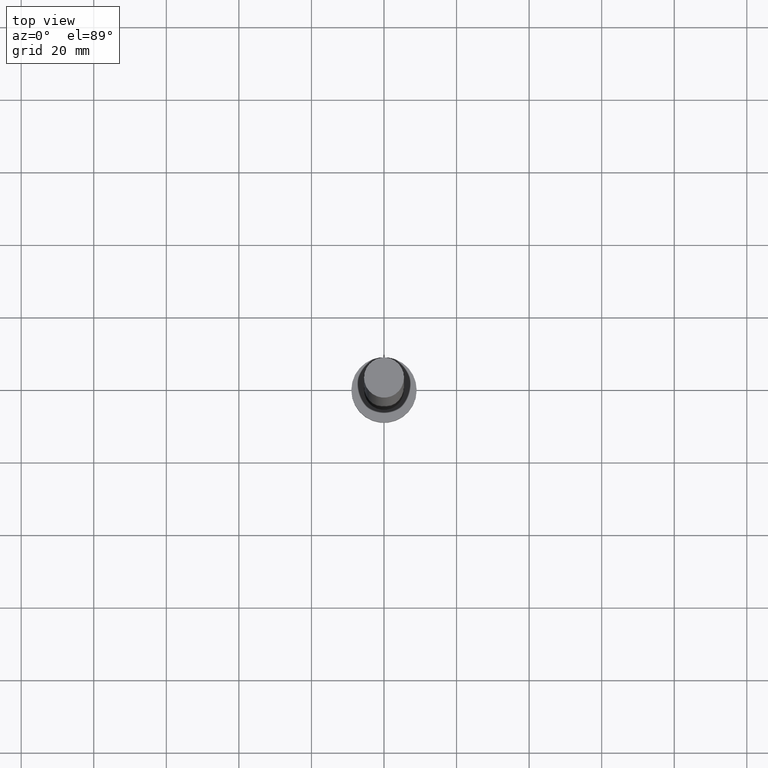
[diagram: clean part render]
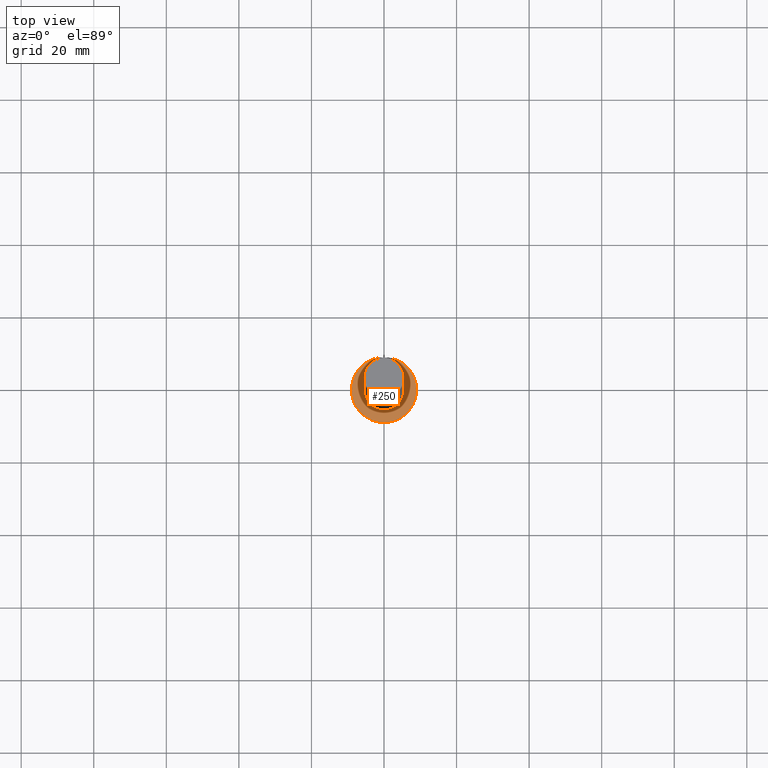
[diagram: same view with one face highlighted and labeled with its STEP entity id]
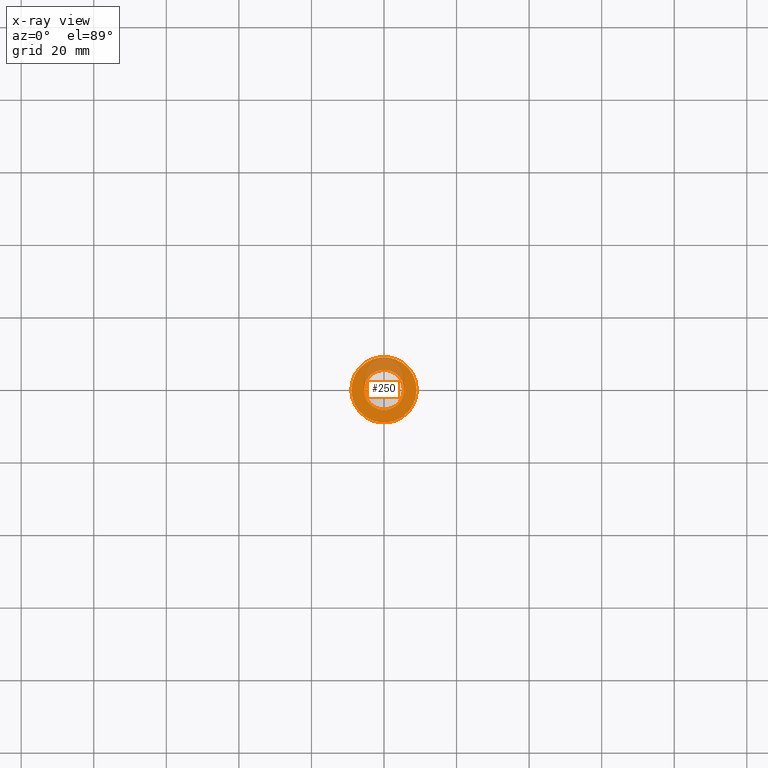
[diagram: x-ray of the same camera — body ghosted, the highlighted face saturated]
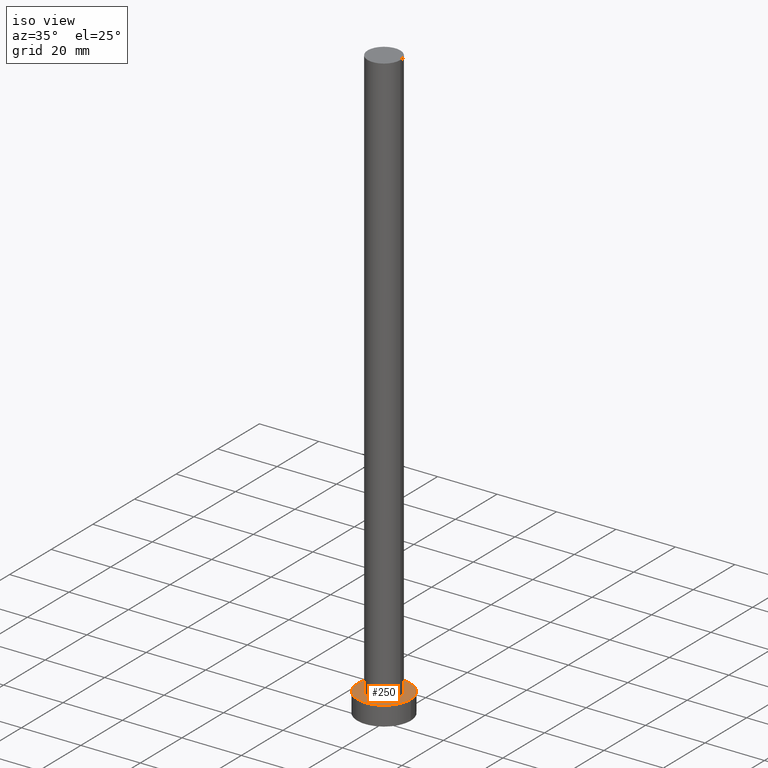
[diagram: same view with one face highlighted and labeled with its STEP entity id]
A machine part, top view. The second image highlights one B-rep face of the part: STEP entity #250.
The next image is the same camera in x-ray: the body ghosted, the highlighted face saturated — about 24% of this face is hidden behind the body in this view.
A second angle (iso view) of the same face is appended — the face is thin or edge-on in the first view.
In plain terms, the highlighted planar face has unit normal (0, 0, 1).
Its self-contained STEP definition (entity closure, byte-faithful):
#1 = DIRECTION ( 'NONE',  ( 0.000000000000000000, 0.000000000000000000, 1.000000000000000000 ) ) ;
#9 = ORIENTED_EDGE ( 'NONE', *, *, #218, .F. ) ;
#32 = EDGE_CURVE ( 'NONE', #93, #206, #106, .T. ) ;
#41 = CIRCLE ( 'NONE', #211, 5.500000000000000000 ) ;
#50 = DIRECTION ( 'NONE',  ( 1.000000000000000000, 0.000000000000000000, 0.000000000000000000 ) ) ;
#58 = CARTESIAN_POINT ( 'NONE',  ( 0.000000000000000000, 0.000000000000000000, 6.500000000000000000 ) ) ;
#61 = CARTESIAN_POINT ( 'NONE',  ( 5.500000000000000000, 6.735557395310442023E-16, 6.500000000000000000 ) ) ;
#67 = CARTESIAN_POINT ( 'NONE',  ( 9.000000000000000000, 1.102182119232617517E-15, 6.500000000000000000 ) ) ;
#69 = EDGE_CURVE ( 'NONE', #206, #93, #188, .T. ) ;
#75 = AXIS2_PLACEMENT_3D ( 'NONE', #233, #236, #137 ) ;
#82 = PLANE ( 'NONE',  #75 ) ;
#92 = CARTESIAN_POINT ( 'NONE',  ( 0.000000000000000000, 0.000000000000000000, 6.500000000000000000 ) ) ;
#93 = VERTEX_POINT ( 'NONE', #105 ) ;
#98 = DIRECTION ( 'NONE',  ( 1.000000000000000000, 0.000000000000000000, 0.000000000000000000 ) ) ;
#105 = CARTESIAN_POINT ( 'NONE',  ( -9.000000000000000000, 0.000000000000000000, 6.500000000000000000 ) ) ;
#106 = CIRCLE ( 'NONE', #109, 9.000000000000000000 ) ;
#108 = DIRECTION ( 'NONE',  ( 0.000000000000000000, 0.000000000000000000, 1.000000000000000000 ) ) ;
#109 = AXIS2_PLACEMENT_3D ( 'NONE', #92, #251, #50 ) ;
#112 = ORIENTED_EDGE ( 'NONE', *, *, #69, .T. ) ;
#116 = ORIENTED_EDGE ( 'NONE', *, *, #238, .F. ) ;
#127 = CIRCLE ( 'NONE', #153, 5.500000000000000000 ) ;
#134 = DIRECTION ( 'NONE',  ( 0.000000000000000000, 0.000000000000000000, 1.000000000000000000 ) ) ;
#136 = EDGE_LOOP ( 'NONE', ( #183, #112 ) ) ;
#137 = DIRECTION ( 'NONE',  ( 1.000000000000000000, 0.000000000000000000, -0.000000000000000000 ) ) ;
#153 = AXIS2_PLACEMENT_3D ( 'NONE', #154, #108, #193 ) ;
#154 = CARTESIAN_POINT ( 'NONE',  ( 0.000000000000000000, 0.000000000000000000, 6.500000000000000000 ) ) ;
#156 = EDGE_LOOP ( 'NONE', ( #116, #9 ) ) ;
#174 = DIRECTION ( 'NONE',  ( 1.000000000000000000, 0.000000000000000000, 0.000000000000000000 ) ) ;
#175 = FACE_BOUND ( 'NONE', #156, .T. ) ;
#183 = ORIENTED_EDGE ( 'NONE', *, *, #32, .T. ) ;
#185 = AXIS2_PLACEMENT_3D ( 'NONE', #58, #134, #98 ) ;
#188 = CIRCLE ( 'NONE', #185, 9.000000000000000000 ) ;
#193 = DIRECTION ( 'NONE',  ( 1.000000000000000000, 0.000000000000000000, 0.000000000000000000 ) ) ;
#194 = CARTESIAN_POINT ( 'NONE',  ( 0.000000000000000000, 0.000000000000000000, 6.500000000000000000 ) ) ;
#198 = FACE_OUTER_BOUND ( 'NONE', #136, .T. ) ;
#206 = VERTEX_POINT ( 'NONE', #67 ) ;
#211 = AXIS2_PLACEMENT_3D ( 'NONE', #194, #1, #174 ) ;
#213 = VERTEX_POINT ( 'NONE', #217 ) ;
#217 = CARTESIAN_POINT ( 'NONE',  ( -5.500000000000000000, 0.000000000000000000, 6.500000000000000000 ) ) ;
#218 = EDGE_CURVE ( 'NONE', #248, #213, #41, .T. ) ;
#233 = CARTESIAN_POINT ( 'NONE',  ( 0.000000000000000000, 0.000000000000000000, 6.500000000000000000 ) ) ;
#236 = DIRECTION ( 'NONE',  ( 0.000000000000000000, 0.000000000000000000, 1.000000000000000000 ) ) ;
#238 = EDGE_CURVE ( 'NONE', #213, #248, #127, .T. ) ;
#248 = VERTEX_POINT ( 'NONE', #61 ) ;
#250 = ADVANCED_FACE ( 'NONE', ( #175, #198 ), #82, .T. ) ;
#251 = DIRECTION ( 'NONE',  ( 0.000000000000000000, 0.000000000000000000, 1.000000000000000000 ) ) ;